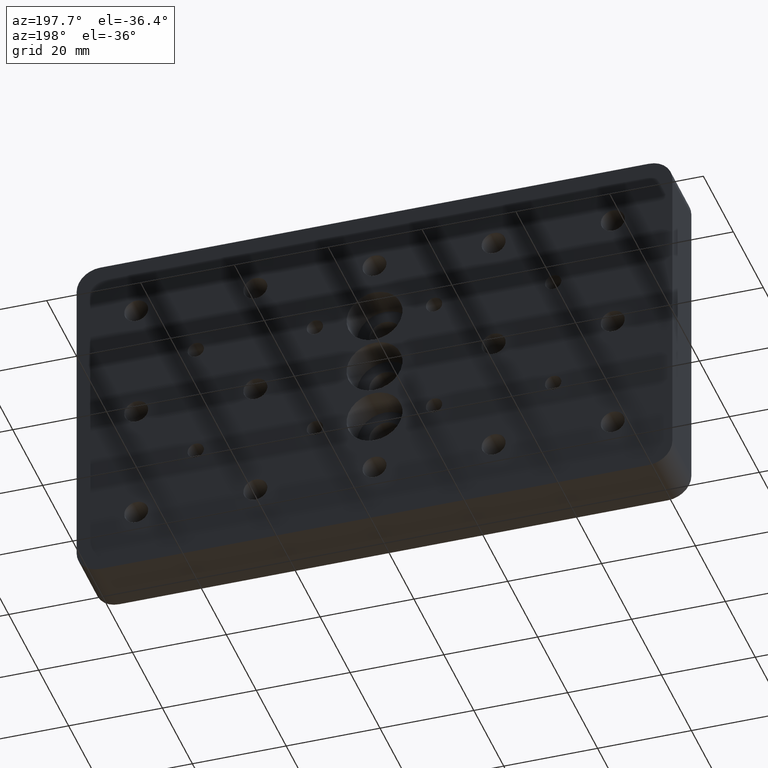
[diagram: clean part render]
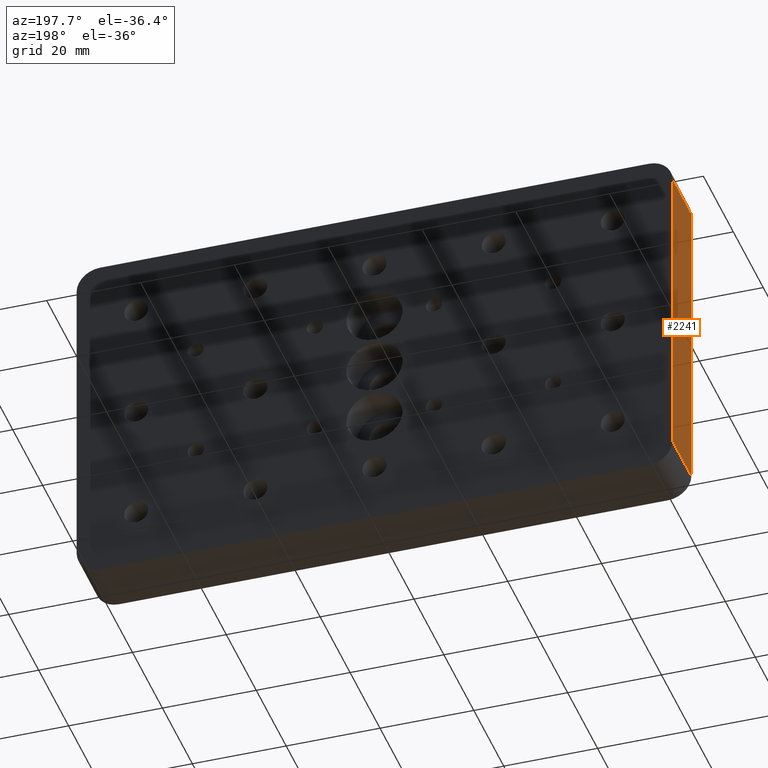
[diagram: same view with one face highlighted and labeled with its STEP entity id]
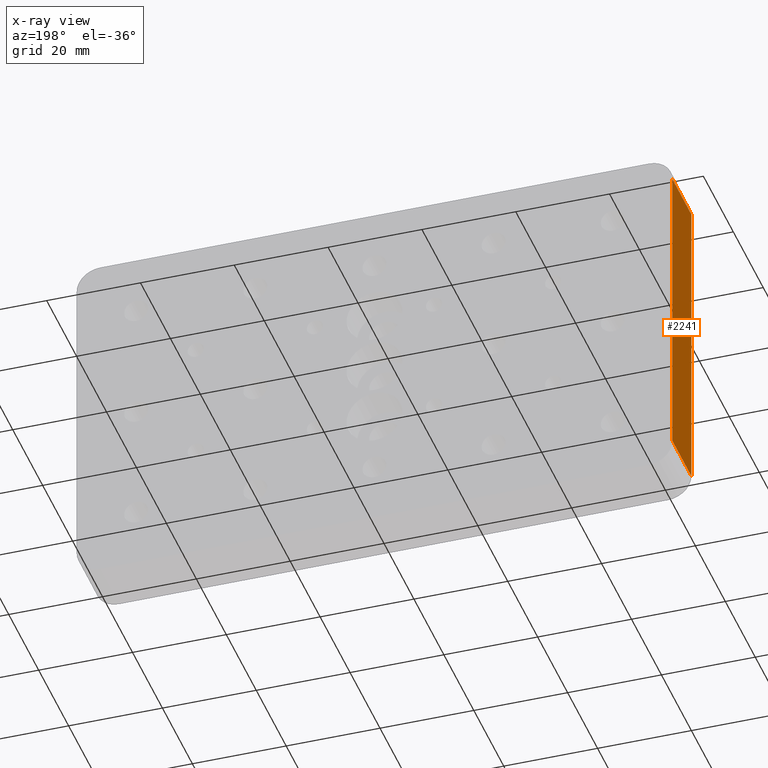
[diagram: x-ray of the same camera — body ghosted, the highlighted face saturated]
A machine part, auxiliary view. The second image highlights one B-rep face of the part: STEP entity #2241.
The next image is the same camera in x-ray: the body ghosted, the highlighted face saturated — about 0% of this face is hidden behind the body in this view.
In plain terms, the highlighted planar face has unit normal (1, 0, -0).
Its self-contained STEP definition (entity closure, byte-faithful):
#81 = CARTESIAN_POINT ( 'NONE',  ( -63.50000000000000000, 6.349999999999999600, -38.00000000000000000 ) ) ;
#97 = PLANE ( 'NONE',  #1771 ) ;
#161 = DIRECTION ( 'NONE',  ( 1.826024711554533900E-016, 0.0000000000000000000, 1.000000000000000000 ) ) ;
#169 = CARTESIAN_POINT ( 'NONE',  ( -63.50000000000000000, -6.349999999999999600, -38.00000000000000000 ) ) ;
#276 = EDGE_CURVE ( 'NONE', #1110, #1161, #1097, .T. ) ;
#289 = CARTESIAN_POINT ( 'NONE',  ( -63.49999999999998600, -6.349999999999999600, 33.00000000000000700 ) ) ;
#313 = ORIENTED_EDGE ( 'NONE', *, *, #819, .F. ) ;
#360 = CARTESIAN_POINT ( 'NONE',  ( -63.49999999999998600, 6.349999999999999600, 33.00000000000000700 ) ) ;
#513 = ORIENTED_EDGE ( 'NONE', *, *, #1883, .T. ) ;
#623 = EDGE_LOOP ( 'NONE', ( #714, #513, #313, #1247 ) ) ;
#658 = LINE ( 'NONE', #2208, #1481 ) ;
#665 = CARTESIAN_POINT ( 'NONE',  ( -63.50000000000000000, 6.349999999999999600, -33.00000000000000000 ) ) ;
#710 = LINE ( 'NONE', #665, #1593 ) ;
#714 = ORIENTED_EDGE ( 'NONE', *, *, #276, .T. ) ;
#750 = EDGE_CURVE ( 'NONE', #900, #1110, #710, .T. ) ;
#819 = EDGE_CURVE ( 'NONE', #900, #1455, #1205, .T. ) ;
#829 = VECTOR ( 'NONE', #161, 1000.000000000000000 ) ;
#846 = DIRECTION ( 'NONE',  ( 0.0000000000000000000, -1.000000000000000000, 0.0000000000000000000 ) ) ;
#900 = VERTEX_POINT ( 'NONE', #2075 ) ;
#1097 = LINE ( 'NONE', #169, #829 ) ;
#1110 = VERTEX_POINT ( 'NONE', #2121 ) ;
#1161 = VERTEX_POINT ( 'NONE', #289 ) ;
#1205 = LINE ( 'NONE', #1437, #2104 ) ;
#1247 = ORIENTED_EDGE ( 'NONE', *, *, #750, .T. ) ;
#1252 = DIRECTION ( 'NONE',  ( -0.0000000000000000000, 1.000000000000000000, -0.0000000000000000000 ) ) ;
#1437 = CARTESIAN_POINT ( 'NONE',  ( -63.50000000000000000, 6.349999999999999600, -38.00000000000000000 ) ) ;
#1455 = VERTEX_POINT ( 'NONE', #360 ) ;
#1481 = VECTOR ( 'NONE', #1252, 1000.000000000000000 ) ;
#1593 = VECTOR ( 'NONE', #846, 1000.000000000000000 ) ;
#1610 = DIRECTION ( 'NONE',  ( 1.000000000000000000, 0.0000000000000000000, -1.826024711554533700E-016 ) ) ;
#1771 = AXIS2_PLACEMENT_3D ( 'NONE', #81, #1610, #2003 ) ;
#1883 = EDGE_CURVE ( 'NONE', #1161, #1455, #658, .T. ) ;
#2003 = DIRECTION ( 'NONE',  ( -1.826024711554533700E-016, 0.0000000000000000000, -1.000000000000000000 ) ) ;
#2075 = CARTESIAN_POINT ( 'NONE',  ( -63.50000000000000000, 6.349999999999999600, -33.00000000000000000 ) ) ;
#2104 = VECTOR ( 'NONE', #2388, 1000.000000000000000 ) ;
#2121 = CARTESIAN_POINT ( 'NONE',  ( -63.50000000000000000, -6.349999999999999600, -33.00000000000000000 ) ) ;
#2208 = CARTESIAN_POINT ( 'NONE',  ( -63.49999999999998600, 6.349999999999999600, 33.00000000000000700 ) ) ;
#2241 = ADVANCED_FACE ( 'NONE', ( #2365 ), #97, .F. ) ;
#2365 = FACE_OUTER_BOUND ( 'NONE', #623, .T. ) ;
#2388 = DIRECTION ( 'NONE',  ( 1.826024711554533900E-016, 0.0000000000000000000, 1.000000000000000000 ) ) ;